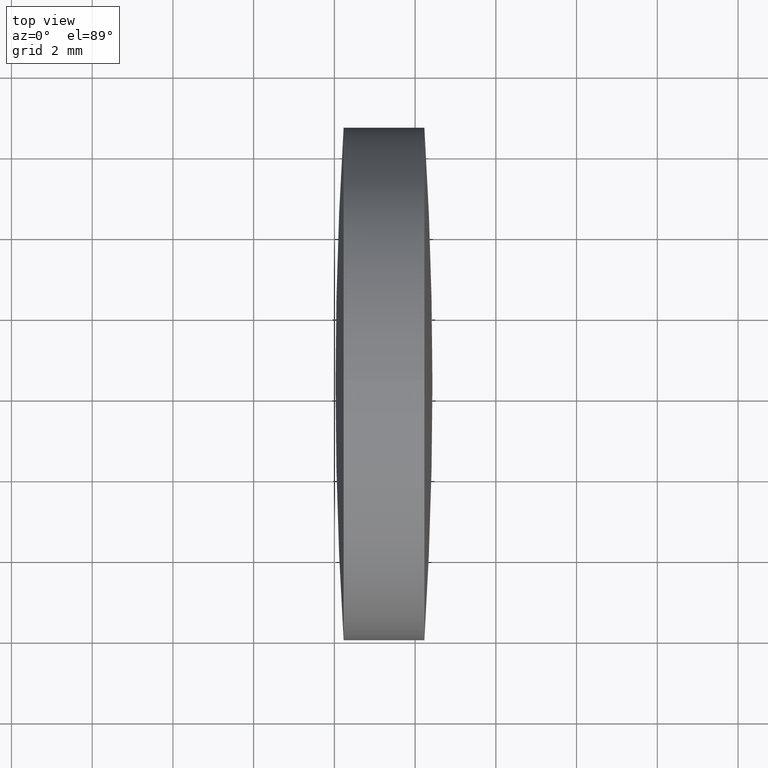
[diagram: clean part render]
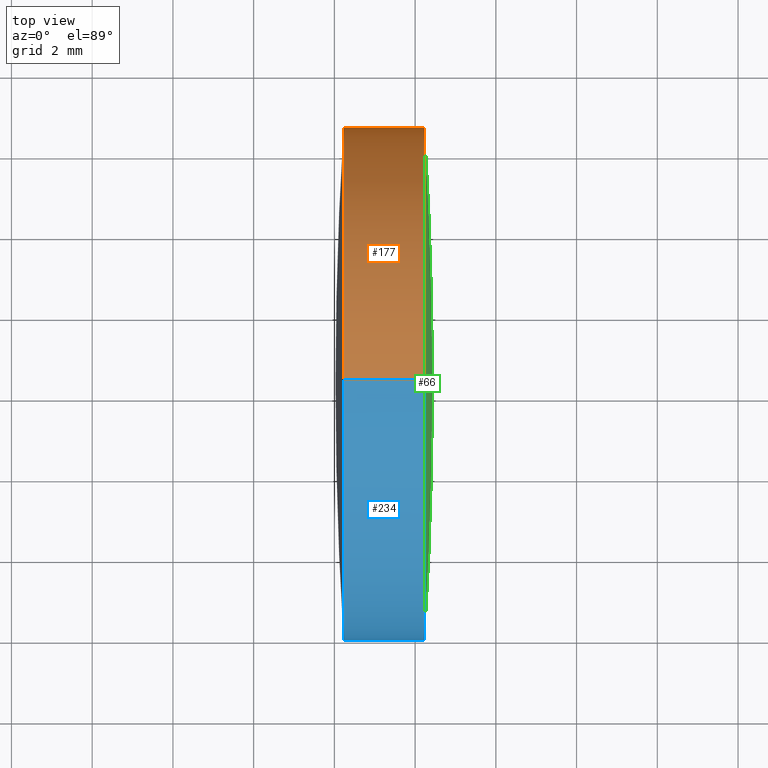
[diagram: same view with three faces highlighted in distinct colors, each labeled with its STEP entity id]
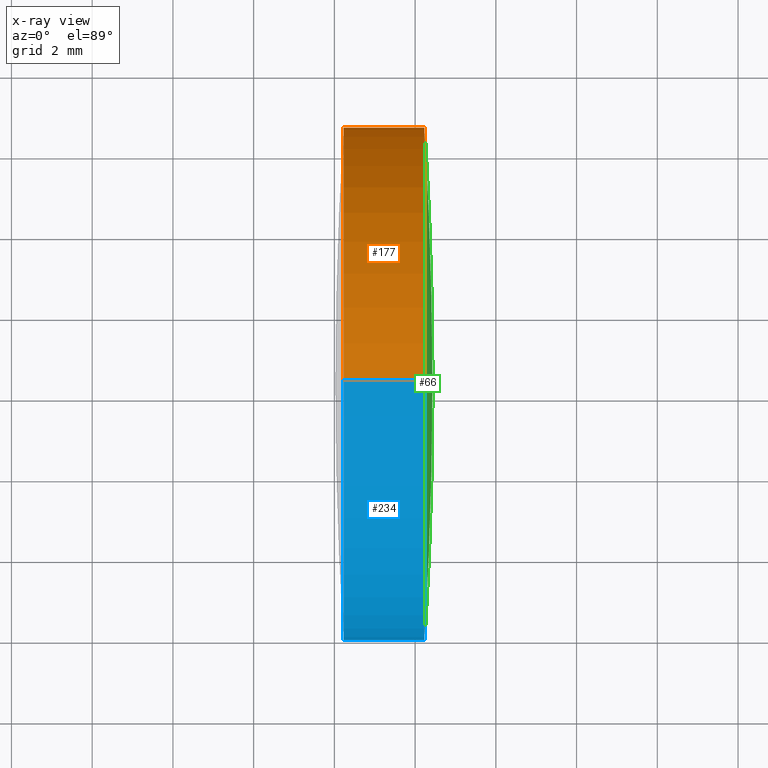
[diagram: x-ray of the same camera — body ghosted, the three highlighted faces saturated]
A machine part, top view with three faces highlighted in distinct colors.
The next image is the same camera in x-ray (body ghosted, the three faces saturated) — at least one of them is partly hidden behind the body in this view.
Their STEP definitions:

[orange] entity #177 — the highlighted cylindrical surface (partial cylindrical patch) has radius 6.35 mm, axis along (-1, -0, -0).
#14 = VERTEX_POINT ( 'NONE', #288 ) ;
#16 = CARTESIAN_POINT ( 'NONE',  ( 42.22906260161698100, 24.30805651159239000, 6.349999999999997900 ) ) ;
#19 = VERTEX_POINT ( 'NONE', #55 ) ;
#20 = CARTESIAN_POINT ( 'NONE',  ( 44.22913117304555200, 30.65805651159237000, 7.776507174585586700E-016 ) ) ;
#23 = DIRECTION ( 'NONE',  ( 0.0000000000000000000, 0.0000000000000000000, 1.000000000000000000 ) ) ;
#24 = DIRECTION ( 'NONE',  ( -1.000000000000000000, -0.0000000000000000000, -0.0000000000000000000 ) ) ;
#27 = DIRECTION ( 'NONE',  ( -1.000000000000000000, -0.0000000000000000000, -0.0000000000000000000 ) ) ;
#50 = VERTEX_POINT ( 'NONE', #16 ) ;
#54 = CARTESIAN_POINT ( 'NONE',  ( 39.65270067541857900, 24.30805651159239000, 6.349999999999997900 ) ) ;
#55 = CARTESIAN_POINT ( 'NONE',  ( 44.22913117304555200, 24.30805651159239000, 6.349999999999997900 ) ) ;
#62 = CARTESIAN_POINT ( 'NONE',  ( 39.65270067541857900, 24.30805651159239000, -6.349999999999997900 ) ) ;
#63 = CYLINDRICAL_SURFACE ( 'NONE', #264, 6.349999999999997900 ) ;
#69 = CIRCLE ( 'NONE', #196, 6.349999999999997900 ) ;
#99 = CARTESIAN_POINT ( 'NONE',  ( 42.22906260161698100, 24.30805651159239000, 0.0000000000000000000 ) ) ;
#100 = CARTESIAN_POINT ( 'NONE',  ( 44.22913117304555200, 24.30805651159239000, -6.349999999999997900 ) ) ;
#102 = DIRECTION ( 'NONE',  ( 0.0000000000000000000, 0.0000000000000000000, 1.000000000000000000 ) ) ;
#113 = CIRCLE ( 'NONE', #214, 6.349999999999997900 ) ;
#115 = EDGE_CURVE ( 'NONE', #50, #14, #69, .T. ) ;
#117 = LINE ( 'NONE', #54, #331 ) ;
#127 = ORIENTED_EDGE ( 'NONE', *, *, #115, .F. ) ;
#146 = AXIS2_PLACEMENT_3D ( 'NONE', #344, #162, #23 ) ;
#152 = CIRCLE ( 'NONE', #146, 6.349999999999997900 ) ;
#162 = DIRECTION ( 'NONE',  ( -1.000000000000000000, -0.0000000000000000000, -0.0000000000000000000 ) ) ;
#175 = EDGE_CURVE ( 'NONE', #14, #176, #113, .T. ) ;
#176 = VERTEX_POINT ( 'NONE', #313 ) ;
#177 = ADVANCED_FACE ( 'NONE', ( #265 ), #63, .T. ) ;
#187 = EDGE_CURVE ( 'NONE', #259, #314, #152, .T. ) ;
#188 = DIRECTION ( 'NONE',  ( -1.000000000000000000, -0.0000000000000000000, -0.0000000000000000000 ) ) ;
#193 = DIRECTION ( 'NONE',  ( -1.000000000000000000, -0.0000000000000000000, -0.0000000000000000000 ) ) ;
#196 = AXIS2_PLACEMENT_3D ( 'NONE', #268, #24, #316 ) ;
#197 = ORIENTED_EDGE ( 'NONE', *, *, #203, .F. ) ;
#203 = EDGE_CURVE ( 'NONE', #19, #50, #117, .T. ) ;
#207 = LINE ( 'NONE', #62, #309 ) ;
#214 = AXIS2_PLACEMENT_3D ( 'NONE', #99, #219, #336 ) ;
#219 = DIRECTION ( 'NONE',  ( -1.000000000000000000, -0.0000000000000000000, -0.0000000000000000000 ) ) ;
#232 = AXIS2_PLACEMENT_3D ( 'NONE', #246, #193, #102 ) ;
#241 = DIRECTION ( 'NONE',  ( -1.000000000000000000, -0.0000000000000000000, -0.0000000000000000000 ) ) ;
#246 = CARTESIAN_POINT ( 'NONE',  ( 44.22913117304555200, 24.30805651159239000, 0.0000000000000000000 ) ) ;
#249 = EDGE_CURVE ( 'NONE', #19, #259, #258, .T. ) ;
#250 = ORIENTED_EDGE ( 'NONE', *, *, #175, .F. ) ;
#252 = EDGE_CURVE ( 'NONE', #314, #176, #207, .T. ) ;
#257 = ORIENTED_EDGE ( 'NONE', *, *, #249, .T. ) ;
#258 = CIRCLE ( 'NONE', #232, 6.349999999999997900 ) ;
#259 = VERTEX_POINT ( 'NONE', #20 ) ;
#263 = ORIENTED_EDGE ( 'NONE', *, *, #252, .T. ) ;
#264 = AXIS2_PLACEMENT_3D ( 'NONE', #294, #188, #319 ) ;
#265 = FACE_OUTER_BOUND ( 'NONE', #332, .T. ) ;
#268 = CARTESIAN_POINT ( 'NONE',  ( 42.22906260161698100, 24.30805651159239000, 0.0000000000000000000 ) ) ;
#288 = CARTESIAN_POINT ( 'NONE',  ( 42.22906260161698800, 30.65805651159245200, 0.0000000000000000000 ) ) ;
#294 = CARTESIAN_POINT ( 'NONE',  ( 39.65270067541857900, 24.30805651159239000, 0.0000000000000000000 ) ) ;
#309 = VECTOR ( 'NONE', #27, 1000.000000000000000 ) ;
#313 = CARTESIAN_POINT ( 'NONE',  ( 42.22906260161698100, 24.30805651159239000, -6.349999999999997900 ) ) ;
#314 = VERTEX_POINT ( 'NONE', #100 ) ;
#316 = DIRECTION ( 'NONE',  ( 0.0000000000000000000, 0.0000000000000000000, 1.000000000000000000 ) ) ;
#319 = DIRECTION ( 'NONE',  ( 0.0000000000000000000, 0.0000000000000000000, 1.000000000000000000 ) ) ;
#322 = ORIENTED_EDGE ( 'NONE', *, *, #187, .T. ) ;
#331 = VECTOR ( 'NONE', #241, 1000.000000000000000 ) ;
#332 = EDGE_LOOP ( 'NONE', ( #322, #263, #250, #127, #197, #257 ) ) ;
#336 = DIRECTION ( 'NONE',  ( 0.0000000000000000000, 0.0000000000000000000, 1.000000000000000000 ) ) ;
#344 = CARTESIAN_POINT ( 'NONE',  ( 44.22913117304555200, 24.30805651159239000, 0.0000000000000000000 ) ) ;

[blue] entity #234 — the highlighted cylindrical surface (partial cylindrical patch) has radius 6.35 mm, axis along (-1, -0, -0).
#2 = ORIENTED_EDGE ( 'NONE', *, *, #91, .T. ) ;
#7 = AXIS2_PLACEMENT_3D ( 'NONE', #161, #297, #135 ) ;
#11 = ORIENTED_EDGE ( 'NONE', *, *, #39, .F. ) ;
#16 = CARTESIAN_POINT ( 'NONE',  ( 42.22906260161698100, 24.30805651159239000, 6.349999999999997900 ) ) ;
#19 = VERTEX_POINT ( 'NONE', #55 ) ;
#27 = DIRECTION ( 'NONE',  ( -1.000000000000000000, -0.0000000000000000000, -0.0000000000000000000 ) ) ;
#39 = EDGE_CURVE ( 'NONE', #140, #50, #97, .T. ) ;
#45 = AXIS2_PLACEMENT_3D ( 'NONE', #104, #189, #338 ) ;
#49 = DIRECTION ( 'NONE',  ( -1.000000000000000000, -0.0000000000000000000, -0.0000000000000000000 ) ) ;
#50 = VERTEX_POINT ( 'NONE', #16 ) ;
#52 = CARTESIAN_POINT ( 'NONE',  ( 42.22906260161698100, 24.30805651159239000, 0.0000000000000000000 ) ) ;
#54 = CARTESIAN_POINT ( 'NONE',  ( 39.65270067541857900, 24.30805651159239000, 6.349999999999997900 ) ) ;
#55 = CARTESIAN_POINT ( 'NONE',  ( 44.22913117304555200, 24.30805651159239000, 6.349999999999997900 ) ) ;
#56 = DIRECTION ( 'NONE',  ( 0.0000000000000000000, 0.0000000000000000000, 1.000000000000000000 ) ) ;
#62 = CARTESIAN_POINT ( 'NONE',  ( 39.65270067541857900, 24.30805651159239000, -6.349999999999997900 ) ) ;
#71 = CARTESIAN_POINT ( 'NONE',  ( 42.22906260161698800, 17.95805651159242400, -7.776507174585767100E-016 ) ) ;
#91 = EDGE_CURVE ( 'NONE', #184, #19, #227, .T. ) ;
#97 = CIRCLE ( 'NONE', #154, 6.349999999999997900 ) ;
#100 = CARTESIAN_POINT ( 'NONE',  ( 44.22913117304555200, 24.30805651159239000, -6.349999999999997900 ) ) ;
#101 = EDGE_CURVE ( 'NONE', #176, #140, #128, .T. ) ;
#104 = CARTESIAN_POINT ( 'NONE',  ( 44.22913117304555200, 24.30805651159239000, 0.0000000000000000000 ) ) ;
#117 = LINE ( 'NONE', #54, #331 ) ;
#128 = CIRCLE ( 'NONE', #242, 6.349999999999997900 ) ;
#131 = EDGE_LOOP ( 'NONE', ( #303, #273, #2, #169, #11, #174 ) ) ;
#135 = DIRECTION ( 'NONE',  ( 0.0000000000000000000, 0.0000000000000000000, 1.000000000000000000 ) ) ;
#140 = VERTEX_POINT ( 'NONE', #71 ) ;
#154 = AXIS2_PLACEMENT_3D ( 'NONE', #52, #49, #312 ) ;
#161 = CARTESIAN_POINT ( 'NONE',  ( 44.22913117304555200, 24.30805651159239000, 0.0000000000000000000 ) ) ;
#165 = CARTESIAN_POINT ( 'NONE',  ( 39.65270067541857900, 24.30805651159239000, 0.0000000000000000000 ) ) ;
#169 = ORIENTED_EDGE ( 'NONE', *, *, #203, .T. ) ;
#174 = ORIENTED_EDGE ( 'NONE', *, *, #101, .F. ) ;
#176 = VERTEX_POINT ( 'NONE', #313 ) ;
#183 = FACE_OUTER_BOUND ( 'NONE', #131, .T. ) ;
#184 = VERTEX_POINT ( 'NONE', #194 ) ;
#189 = DIRECTION ( 'NONE',  ( -1.000000000000000000, -0.0000000000000000000, -0.0000000000000000000 ) ) ;
#194 = CARTESIAN_POINT ( 'NONE',  ( 44.22913117304555200, 17.95805651159247800, 0.0000000000000000000 ) ) ;
#203 = EDGE_CURVE ( 'NONE', #19, #50, #117, .T. ) ;
#207 = LINE ( 'NONE', #62, #309 ) ;
#224 = DIRECTION ( 'NONE',  ( -1.000000000000000000, -0.0000000000000000000, -0.0000000000000000000 ) ) ;
#227 = CIRCLE ( 'NONE', #7, 6.349999999999997900 ) ;
#234 = ADVANCED_FACE ( 'NONE', ( #183 ), #340, .T. ) ;
#241 = DIRECTION ( 'NONE',  ( -1.000000000000000000, -0.0000000000000000000, -0.0000000000000000000 ) ) ;
#242 = AXIS2_PLACEMENT_3D ( 'NONE', #341, #224, #343 ) ;
#252 = EDGE_CURVE ( 'NONE', #314, #176, #207, .T. ) ;
#273 = ORIENTED_EDGE ( 'NONE', *, *, #286, .T. ) ;
#286 = EDGE_CURVE ( 'NONE', #314, #184, #287, .T. ) ;
#287 = CIRCLE ( 'NONE', #45, 6.349999999999997900 ) ;
#297 = DIRECTION ( 'NONE',  ( -1.000000000000000000, -0.0000000000000000000, -0.0000000000000000000 ) ) ;
#301 = AXIS2_PLACEMENT_3D ( 'NONE', #165, #342, #56 ) ;
#303 = ORIENTED_EDGE ( 'NONE', *, *, #252, .F. ) ;
#309 = VECTOR ( 'NONE', #27, 1000.000000000000000 ) ;
#312 = DIRECTION ( 'NONE',  ( 0.0000000000000000000, 0.0000000000000000000, 1.000000000000000000 ) ) ;
#313 = CARTESIAN_POINT ( 'NONE',  ( 42.22906260161698100, 24.30805651159239000, -6.349999999999997900 ) ) ;
#314 = VERTEX_POINT ( 'NONE', #100 ) ;
#331 = VECTOR ( 'NONE', #241, 1000.000000000000000 ) ;
#338 = DIRECTION ( 'NONE',  ( 0.0000000000000000000, 0.0000000000000000000, 1.000000000000000000 ) ) ;
#340 = CYLINDRICAL_SURFACE ( 'NONE', #301, 6.349999999999997900 ) ;
#341 = CARTESIAN_POINT ( 'NONE',  ( 42.22906260161698100, 24.30805651159239000, 0.0000000000000000000 ) ) ;
#342 = DIRECTION ( 'NONE',  ( -1.000000000000000000, -0.0000000000000000000, -0.0000000000000000000 ) ) ;
#343 = DIRECTION ( 'NONE',  ( 0.0000000000000000000, 0.0000000000000000000, 1.000000000000000000 ) ) ;

[green] entity #66 — the highlighted spherical surface has radius 100.93 mm.
#7 = AXIS2_PLACEMENT_3D ( 'NONE', #161, #297, #135 ) ;
#19 = VERTEX_POINT ( 'NONE', #55 ) ;
#20 = CARTESIAN_POINT ( 'NONE',  ( 44.22913117304555200, 30.65805651159237000, 7.776507174585586700E-016 ) ) ;
#21 = AXIS2_PLACEMENT_3D ( 'NONE', #295, #76, #160 ) ;
#22 = DIRECTION ( 'NONE',  ( 0.0000000000000000000, -1.000000000000000000, -1.224646799147353200E-016 ) ) ;
#29 = EDGE_CURVE ( 'NONE', #307, #259, #141, .T. ) ;
#43 = ORIENTED_EDGE ( 'NONE', *, *, #91, .F. ) ;
#55 = CARTESIAN_POINT ( 'NONE',  ( 44.22913117304555200, 24.30805651159239000, 6.349999999999997900 ) ) ;
#66 = ADVANCED_FACE ( 'NONE', ( #77 ), #235, .T. ) ;
#76 = DIRECTION ( 'NONE',  ( 0.0000000000000000000, 0.0000000000000000000, -1.000000000000000000 ) ) ;
#77 = FACE_OUTER_BOUND ( 'NONE', #116, .T. ) ;
#86 = ORIENTED_EDGE ( 'NONE', *, *, #267, .F. ) ;
#91 = EDGE_CURVE ( 'NONE', #184, #19, #227, .T. ) ;
#102 = DIRECTION ( 'NONE',  ( 0.0000000000000000000, 0.0000000000000000000, 1.000000000000000000 ) ) ;
#116 = EDGE_LOOP ( 'NONE', ( #86, #213, #239, #43 ) ) ;
#126 = CARTESIAN_POINT ( 'NONE',  ( -56.50112580384402600, 24.30805651159245400, 0.0000000000000000000 ) ) ;
#135 = DIRECTION ( 'NONE',  ( 0.0000000000000000000, 0.0000000000000000000, 1.000000000000000000 ) ) ;
#141 = CIRCLE ( 'NONE', #208, 100.9302094054610100 ) ;
#160 = DIRECTION ( 'NONE',  ( -1.000000000000000000, 0.0000000000000000000, 0.0000000000000000000 ) ) ;
#161 = CARTESIAN_POINT ( 'NONE',  ( 44.22913117304555200, 24.30805651159239000, 0.0000000000000000000 ) ) ;
#184 = VERTEX_POINT ( 'NONE', #194 ) ;
#193 = DIRECTION ( 'NONE',  ( -1.000000000000000000, -0.0000000000000000000, -0.0000000000000000000 ) ) ;
#194 = CARTESIAN_POINT ( 'NONE',  ( 44.22913117304555200, 17.95805651159247800, 0.0000000000000000000 ) ) ;
#208 = AXIS2_PLACEMENT_3D ( 'NONE', #126, #290, #22 ) ;
#212 = DIRECTION ( 'NONE',  ( 0.0000000000000000000, -1.000000000000000000, 0.0000000000000000000 ) ) ;
#213 = ORIENTED_EDGE ( 'NONE', *, *, #29, .T. ) ;
#216 = DIRECTION ( 'NONE',  ( 0.0000000000000000000, 0.0000000000000000000, 1.000000000000000000 ) ) ;
#227 = CIRCLE ( 'NONE', #7, 6.349999999999997900 ) ;
#232 = AXIS2_PLACEMENT_3D ( 'NONE', #246, #193, #102 ) ;
#235 = SPHERICAL_SURFACE ( 'NONE', #281, 100.9302094054610100 ) ;
#239 = ORIENTED_EDGE ( 'NONE', *, *, #249, .F. ) ;
#244 = CIRCLE ( 'NONE', #21, 100.9302094054610100 ) ;
#246 = CARTESIAN_POINT ( 'NONE',  ( 44.22913117304555200, 24.30805651159239000, 0.0000000000000000000 ) ) ;
#249 = EDGE_CURVE ( 'NONE', #19, #259, #258, .T. ) ;
#258 = CIRCLE ( 'NONE', #232, 6.349999999999997900 ) ;
#259 = VERTEX_POINT ( 'NONE', #20 ) ;
#267 = EDGE_CURVE ( 'NONE', #307, #184, #244, .T. ) ;
#281 = AXIS2_PLACEMENT_3D ( 'NONE', #293, #216, #212 ) ;
#290 = DIRECTION ( 'NONE',  ( 0.0000000000000000000, -1.224646799147353200E-016, 1.000000000000000000 ) ) ;
#293 = CARTESIAN_POINT ( 'NONE',  ( -56.50112580384402600, 24.30805651159245400, 0.0000000000000000000 ) ) ;
#295 = CARTESIAN_POINT ( 'NONE',  ( -56.50112580384402600, 24.30805651159245400, 0.0000000000000000000 ) ) ;
#297 = DIRECTION ( 'NONE',  ( -1.000000000000000000, -0.0000000000000000000, -0.0000000000000000000 ) ) ;
#299 = CARTESIAN_POINT ( 'NONE',  ( 44.42908360161699500, 24.30805651159244700, 0.0000000000000000000 ) ) ;
#307 = VERTEX_POINT ( 'NONE', #299 ) ;